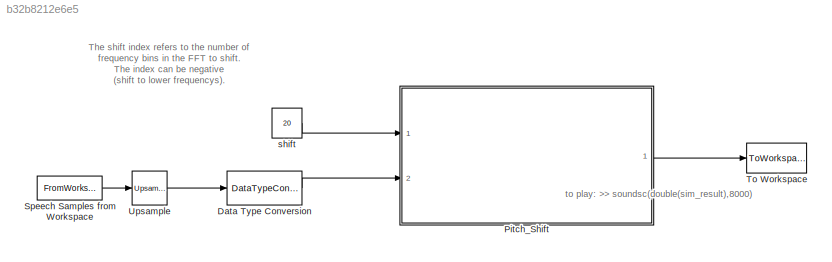
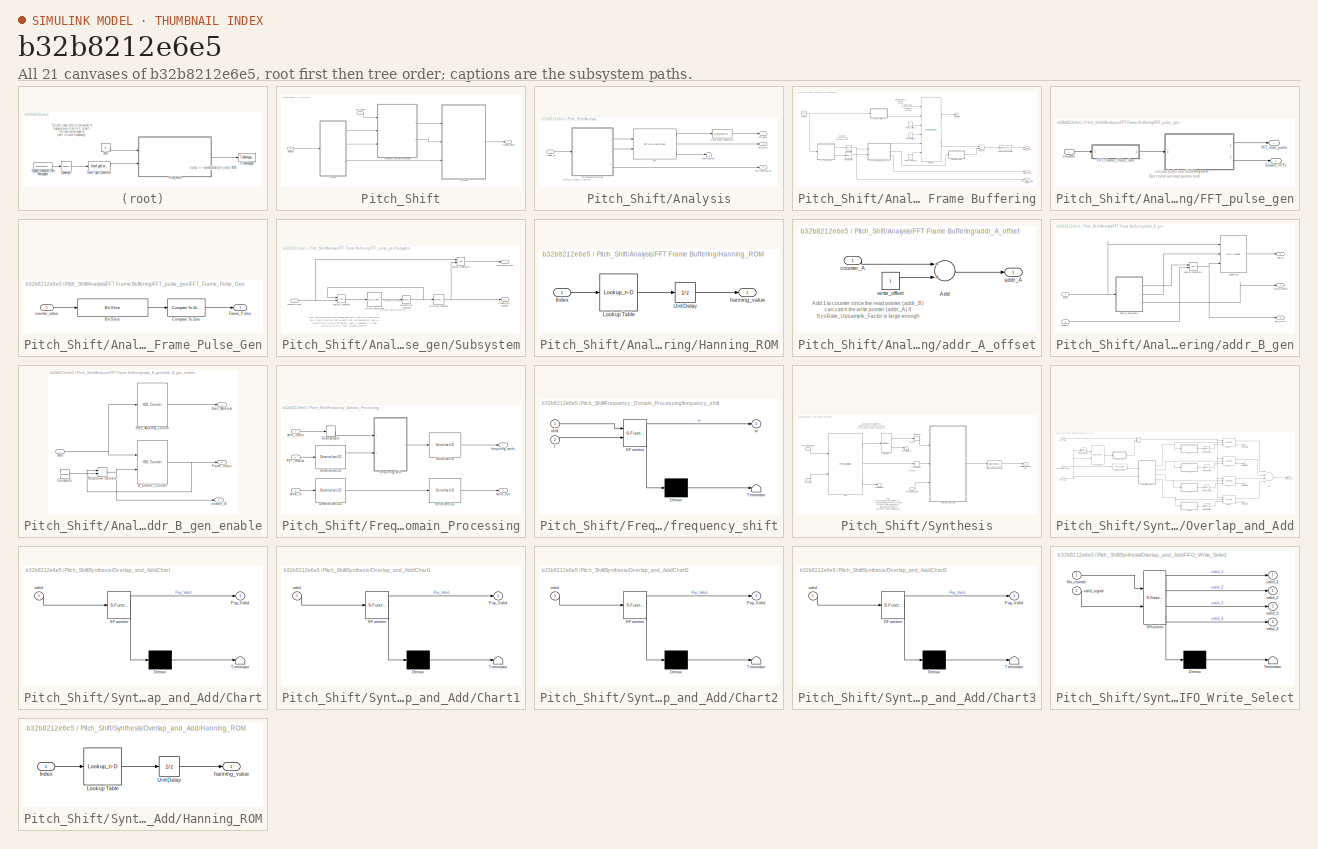
[diagram: thumbnail index - all 21 canvases of the model, root first then tree order]
MODEL slx_b32b8212e6e5
KIND model
CONFIG AbsTol = auto
CONFIG EnableMultiTasking = off
CONFIG FixedStep = auto
CONFIG InitFcn = load speech_signal\nFs = 48000;\nTs = 1/Fs;\n\nFFT_size = 128;\nFFT_size_half = FFT_size/2;\nFFT_frame_shift = FFT_size/4;  % should be a power of two (to easily replace mode operator that is not HDL compatible)\nFFT_frame_shift_Nbits = log2(FFT_frame_shift);\n\nDPRAM1_size = FFT_size*2;  % number of words\nDPRAM1_address_size = log2(DPRAM1_size);\n\n\n\nSysRate_Upsample_Factor = 32;\n\n\nWbits = 32;    %fixdt(1,W...<+26ch>
CONFIG MaxStep = auto
CONFIG MinStep = auto
CONFIG RelTol = 1e-3
CONFIG SampleTimeConstraint = Unconstrained
CONFIG Solver = FixedStepDiscrete
CONFIG SolverName = FixedStepDiscrete
CONFIG StartTime = 0.0
CONFIG StopTime = 5
BLOCK [DataTypeConversion] Data Type Conversion
  OutDataTypeStr = fixdt(1,Wbits,Fbits)
  RndMeth = Floor
  SaturateOnIntegerOverflow = off
BLOCK [SubSystem] Pitch_Shift
  Ports = [2, 1]
  RequestExecContextInheritance = off
  TreatAsAtomicUnit = on
BLOCK [SubSystem] Pitch_Shift/Analysis
  Ports = [1, 3]
  RequestExecContextInheritance = off
BLOCK [DataTypeConversion] Pitch_Shift/Analysis/Data Type Conversion
  OutDataTypeStr = fixdt(1,Wbits,Fbits)
  RndMeth = Floor
  SaturateOnIntegerOverflow = off
BLOCK [Reference] Pitch_Shift/Analysis/FFT  REF=dspxfrm3/FFT
HDL Optimized
  Ports = [2, 3]
  SourceBlock = dspxfrm3/FFT\nHDL Optimized
  SourceProductBaseCode = DS
  SourceProductName = DSP System Toolbox
  SourceType = FFT HDL Optimized
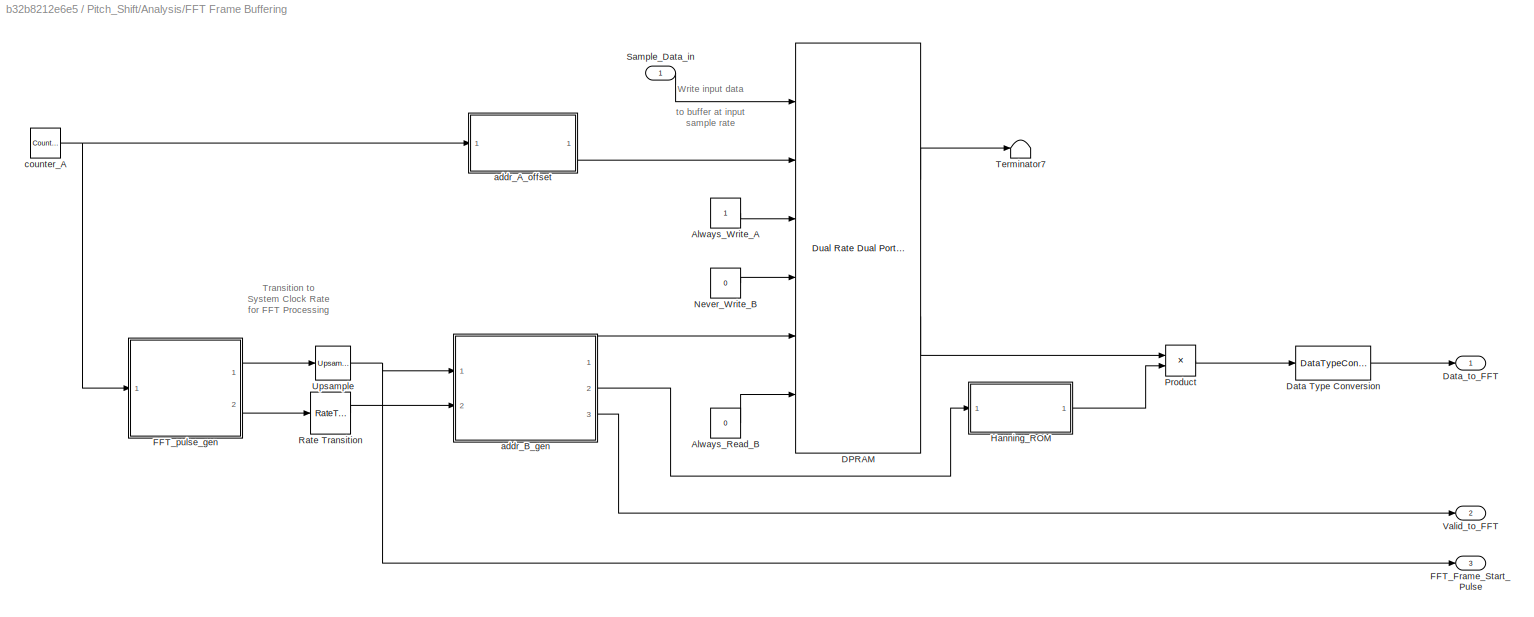
BLOCK [SubSystem] Pitch_Shift/Analysis/FFT Frame Buffering
  Ports = [1, 3]
  RequestExecContextInheritance = off
BLOCK [Constant] Pitch_Shift/Analysis/FFT Frame Buffering/Always_Read_B
  OutDataTypeStr = boolean
  SampleTime = Ts/SysRate_Upsample_Factor
  Value = 0
BLOCK [Constant] Pitch_Shift/Analysis/FFT Frame Buffering/Always_Write_A
  OutDataTypeStr = boolean
  SampleTime = Ts
BLOCK [Reference] Pitch_Shift/Analysis/FFT Frame Buffering/DPRAM  REF=hdlsllib/HDL RAMs/Dual Rate Dual Port RAM
  Ports = [6, 2]
  SourceBlock = hdlsllib/HDL RAMs/Dual Rate Dual Port RAM
  SourceProductBaseCode = HD
  SourceProductName = HDL Coder
  SourceType = Dual-rate dual-port RAM
BLOCK [DataTypeConversion] Pitch_Shift/Analysis/FFT Frame Buffering/Data Type Conversion
  OutDataTypeStr = fixdt(1,Wbits,Fbits)
  RndMeth = Floor
  SaturateOnIntegerOverflow = off
BLOCK [Outport] Pitch_Shift/Analysis/FFT Frame Buffering/Data_to_FFT
  IconDisplay = Port number
BLOCK [Outport] Pitch_Shift/Analysis/FFT Frame Buffering/FFT_Frame_Start_Pulse
  IconDisplay = Port number
  Port = 3
BLOCK [SubSystem] Pitch_Shift/Analysis/FFT Frame Buffering/FFT_pulse_gen
  Ports = [1, 2]
  RequestExecContextInheritance = off
BLOCK [Outport] Pitch_Shift/Analysis/FFT Frame Buffering/FFT_pulse_gen/Enable_FFTs
  IconDisplay = Port number
  Port = 2
BLOCK [SubSystem] Pitch_Shift/Analysis/FFT Frame Buffering/FFT_pulse_gen/FFT_Frame_Pulse_Gen
  Ports = [1, 1]
  RequestExecContextInheritance = off
BLOCK [Reference] Pitch_Shift/Analysis/FFT Frame Buffering/FFT_pulse_gen/FFT_Frame_Pulse_Gen/Bit Slice  REF=hdlsllib/Logic and Bit
Operations/Bit Slice
  Ports = [1, 1]
  SourceBlock = hdlsllib/Logic and Bit\nOperations/Bit Slice
  SourceProductBaseCode = HD
  SourceProductName = HDL Coder
  SourceType = Bit Slice
BLOCK [Reference] Pitch_Shift/Analysis/FFT Frame Buffering/FFT_pulse_gen/FFT_Frame_Pulse_Gen/Compare To Zero  REF=simulink/Logic and Bit
Operations/Compare
To Zero
  Ports = [1, 1]
  SourceBlock = simulink/Logic and Bit\nOperations/Compare\nTo Zero
  SourceProductBaseCode = SL
  SourceProductName = Simulink
  SourceType = Compare To Zero
BLOCK [Outport] Pitch_Shift/Analysis/FFT Frame Buffering/FFT_pulse_gen/FFT_Frame_Pulse_Gen/Frame_Pulse
  IconDisplay = Port number
BLOCK [Inport] Pitch_Shift/Analysis/FFT Frame Buffering/FFT_pulse_gen/FFT_Frame_Pulse_Gen/counter_value 
  IconDisplay = Port number
BLOCK [Outport] Pitch_Shift/Analysis/FFT Frame Buffering/FFT_pulse_gen/FFT_start_pulse
  IconDisplay = Port number
BLOCK [SubSystem] Pitch_Shift/Analysis/FFT Frame Buffering/FFT_pulse_gen/Subsystem
  Ports = [1, 2]
  RequestExecContextInheritance = off
BLOCK [Reference] Pitch_Shift/Analysis/FFT Frame Buffering/FFT_pulse_gen/Subsystem/Bitwise Operator  REF=simulink/Logic and Bit
Operations/Bitwise
Operator
  Ports = [1, 1]
  SourceBlock = simulink/Logic and Bit\nOperations/Bitwise\nOperator
  SourceProductBaseCode = SL
  SourceProductName = Simulink
  SourceType = Bitwise Operator
BLOCK [Reference] Pitch_Shift/Analysis/FFT Frame Buffering/FFT_pulse_gen/Subsystem/Compare To Constant  REF=simulink/Logic and Bit
Operations/Compare
To Constant
  Ports = [1, 1]
  SourceBlock = simulink/Logic and Bit\nOperations/Compare\nTo Constant
  SourceProductBaseCode = SL
  SourceProductName = Simulink
  SourceType = Compare To Constant
BLOCK [Outport] Pitch_Shift/Analysis/FFT Frame Buffering/FFT_pulse_gen/Subsystem/Enable_FFT_Frames
  IconDisplay = Port number
  Port = 2
BLOCK [Outport] Pitch_Shift/Analysis/FFT Frame Buffering/FFT_pulse_gen/Subsystem/FFT_Frame_Start
  IconDisplay = Port number
BLOCK [Inport] Pitch_Shift/Analysis/FFT Frame Buffering/FFT_pulse_gen/Subsystem/Frame_Pulse
  IconDisplay = Port number
BLOCK [Reference] Pitch_Shift/Analysis/FFT Frame Buffering/FFT_pulse_gen/Subsystem/Initial_frame_count  REF=hdlsllib/Sources/HDL Counter
  Ports = [1, 1]
  SourceBlock = hdlsllib/Sources/HDL Counter
  SourceProductBaseCode = HD
  SourceProductName = HDL Coder
  SourceType = HDL Counter
BLOCK [Logic] Pitch_Shift/Analysis/FFT Frame Buffering/FFT_pulse_gen/Subsystem/Logical Operator
  AllPortsSameDT = off
  OutDataTypeStr = boolean
  Ports = [2, 1]
BLOCK [Logic] Pitch_Shift/Analysis/FFT Frame Buffering/FFT_pulse_gen/Subsystem/Logical Operator1
  AllPortsSameDT = off
  OutDataTypeStr = boolean
  Ports = [2, 1]
BLOCK [Inport] Pitch_Shift/Analysis/FFT Frame Buffering/FFT_pulse_gen/counter
  IconDisplay = Port number
BLOCK [SubSystem] Pitch_Shift/Analysis/FFT Frame Buffering/Hanning_ROM
  Ports = [1, 1]
  RequestExecContextInheritance = off
BLOCK [Inport] Pitch_Shift/Analysis/FFT Frame Buffering/Hanning_ROM/Index
  IconDisplay = Port number
BLOCK [Lookup_n-D] Pitch_Shift/Analysis/FFT Frame Buffering/Hanning_ROM/Lookup Table
  BreakpointsForDimension1 = [0:FFT_size]
  DiagnosticForOutOfRangeInput = Error
  ExtrapMethod = Clip
  IndexSearchMethod = Evenly spaced points
  InterpMethod = Flat
  NumberOfTableDimensions = 1
  OutDataTypeStr = fixdt(1,24,22)
  Ports = [1, 1]
  RndMeth = Simplest
  Table = hanning(FFT_size+1)
  UseLastTableValue = on
BLOCK [UnitDelay] Pitch_Shift/Analysis/FFT Frame Buffering/Hanning_ROM/Unit Delay
  SampleTime = -1
BLOCK [Outport] Pitch_Shift/Analysis/FFT Frame Buffering/Hanning_ROM/hanning_value
  IconDisplay = Port number
BLOCK [Constant] Pitch_Shift/Analysis/FFT Frame Buffering/Never_Write_B
  OutDataTypeStr = fixdt(1,Wbits,Fbits)
  SampleTime = Ts/SysRate_Upsample_Factor
  Value = 0
BLOCK [Product] Pitch_Shift/Analysis/FFT Frame Buffering/Product
  InputSameDT = off
  OutDataTypeStr = Inherit: Inherit via internal rule
  Ports = [2, 1]
  RndMeth = Floor
  SaturateOnIntegerOverflow = off
BLOCK [RateTransition] Pitch_Shift/Analysis/FFT Frame Buffering/Rate Transition
  OutPortSampleTimeMultiple = 1/SysRate_Upsample_Factor
  OutPortSampleTimeOpt = Multiple of input port sample time
BLOCK [Inport] Pitch_Shift/Analysis/FFT Frame Buffering/Sample_Data_in
  IconDisplay = Port number
BLOCK [Terminator] Pitch_Shift/Analysis/FFT Frame Buffering/Terminator7
BLOCK [Reference] Pitch_Shift/Analysis/FFT Frame Buffering/Upsample  REF=dspsigops/Upsample
  Ports = [1, 1]
  SourceBlock = dspsigops/Upsample
  SourceProductBaseCode = DS
  SourceProductName = DSP System Toolbox
  SourceType = Upsample
  UserDataPersistent = on
BLOCK [Outport] Pitch_Shift/Analysis/FFT Frame Buffering/Valid_to_FFT
  IconDisplay = Port number
  Port = 2
BLOCK [SubSystem] Pitch_Shift/Analysis/FFT Frame Buffering/addr_A_offset
  Ports = [1, 1]
  RequestExecContextInheritance = off
BLOCK [Sum] Pitch_Shift/Analysis/FFT Frame Buffering/addr_A_offset/Add
  InputSameDT = off
  OutDataTypeStr = fixdt(0,DPRAM1_address_size,0)
  Ports = [2, 1]
  SaturateOnIntegerOverflow = off
BLOCK [Outport] Pitch_Shift/Analysis/FFT Frame Buffering/addr_A_offset/addr_A
  IconDisplay = Port number
BLOCK [Inport] Pitch_Shift/Analysis/FFT Frame Buffering/addr_A_offset/counter_A
  IconDisplay = Port number
BLOCK [Constant] Pitch_Shift/Analysis/FFT Frame Buffering/addr_A_offset/write_offset
  OutDataTypeStr = fixdt(0,DPRAM1_address_size,0)
  SampleTime = Ts
BLOCK [SubSystem] Pitch_Shift/Analysis/FFT Frame Buffering/addr_B_gen
  Ports = [2, 3]
  RequestExecContextInheritance = off
BLOCK [Outport] Pitch_Shift/Analysis/FFT Frame Buffering/addr_B_gen/FFT_Valid
  IconDisplay = Port number
  Port = 3
BLOCK [Outport] Pitch_Shift/Analysis/FFT Frame Buffering/addr_B_gen/Frame_counter
  IconDisplay = Port number
  Port = 2
BLOCK [Logic] Pitch_Shift/Analysis/FFT Frame Buffering/addr_B_gen/Logical Operator1
  AllPortsSameDT = off
  OutDataTypeStr = boolean
  Ports = [2, 1]
BLOCK [Outport] Pitch_Shift/Analysis/FFT Frame Buffering/addr_B_gen/addr_B
  IconDisplay = Port number
BLOCK [SubSystem] Pitch_Shift/Analysis/FFT Frame Buffering/addr_B_gen/addr_B_gen_enable
  Ports = [1, 3]
  RequestExecContextInheritance = off
BLOCK [Reference] Pitch_Shift/Analysis/FFT Frame Buffering/addr_B_gen/addr_B_gen_enable/B_Enable_Counter  REF=hdlsllib/Sources/HDL Counter
  Ports = [2, 1]
  SourceBlock = hdlsllib/Sources/HDL Counter
  SourceProductBaseCode = HD
  SourceProductName = HDL Coder
  SourceType = HDL Counter
BLOCK [Constant] Pitch_Shift/Analysis/FFT Frame Buffering/addr_B_gen/addr_B_gen_enable/Constant5
  OutDataTypeStr = fixdt(0,11,0)
  SampleTime = Ts/SysRate_Upsample_Factor
  Value = FFT_size
BLOCK [Outport] Pitch_Shift/Analysis/FFT Frame Buffering/addr_B_gen/addr_B_gen_enable/Frame_Index
  IconDisplay = Port number
  Port = 3
BLOCK [RelationalOperator] Pitch_Shift/Analysis/FFT Frame Buffering/addr_B_gen/addr_B_gen_enable/Relational Operator
  InputSameDT = off
  Operator = <
  OutDataTypeStr = boolean
  Ports = [2, 1]
  ZeroCross = off
BLOCK [Outport] Pitch_Shift/Analysis/FFT Frame Buffering/addr_B_gen/addr_B_gen_enable/Start_Address
  IconDisplay = Port number
  Port = 2
BLOCK [Reference] Pitch_Shift/Analysis/FFT Frame Buffering/addr_B_gen/addr_B_gen_enable/Start_Address_Counter  REF=hdlsllib/Sources/HDL Counter
  Ports = [1, 1]
  SourceBlock = hdlsllib/Sources/HDL Counter
  SourceProductBaseCode = HD
  SourceProductName = HDL Coder
  SourceType = HDL Counter
BLOCK [Outport] Pitch_Shift/Analysis/FFT Frame Buffering/addr_B_gen/addr_B_gen_enable/enable_B
  IconDisplay = Port number
BLOCK [Inport] Pitch_Shift/Analysis/FFT Frame Buffering/addr_B_gen/addr_B_gen_enable/start
  IconDisplay = Port number
BLOCK [Reference] Pitch_Shift/Analysis/FFT Frame Buffering/addr_B_gen/counter_B  REF=hdlsllib/Sources/HDL Counter
  Ports = [3, 1]
  SourceBlock = hdlsllib/Sources/HDL Counter
  SourceProductBaseCode = HD
  SourceProductName = HDL Coder
  SourceType = HDL Counter
BLOCK [Inport] Pitch_Shift/Analysis/FFT Frame Buffering/addr_B_gen/enable
  IconDisplay = Port number
  Port = 2
BLOCK [Inport] Pitch_Shift/Analysis/FFT Frame Buffering/addr_B_gen/start
  IconDisplay = Port number
BLOCK [Reference] Pitch_Shift/Analysis/FFT Frame Buffering/counter_A  REF=simulink/Sources/Counter
Free-Running
  Ports = [0, 1]
  SourceBlock = simulink/Sources/Counter\nFree-Running
  SourceProductBaseCode = SL
  SourceProductName = Simulink
  SourceType = Counter Free-Running
BLOCK [Outport] Pitch_Shift/Analysis/FFT_data
  IconDisplay = Port number
BLOCK [Outport] Pitch_Shift/Analysis/FFT_frame_pulse
  IconDisplay = Port number
  Port = 3
BLOCK [Outport] Pitch_Shift/Analysis/FFT_valid
  IconDisplay = Port number
  Port = 2
BLOCK [Inport] Pitch_Shift/Analysis/Signal_in
  IconDisplay = Port number
BLOCK [Terminator] Pitch_Shift/Analysis/Terminator6
BLOCK [SubSystem] Pitch_Shift/Frequency_Domain_Processing
  Ports = [3, 2]
  RequestExecContextInheritance = off
BLOCK [Reference] Pitch_Shift/Frequency_Domain_Processing/Deserializer1D  REF=hdlsllib/HDL Operations/Deserializer1D
  Ports = [1, 1]
  SourceBlock = hdlsllib/HDL Operations/Deserializer1D
  SourceProductBaseCode = HD
  SourceProductName = HDL Coder
  SourceType = Deserializer1D
BLOCK [Reference] Pitch_Shift/Frequency_Domain_Processing/Deserializer1D1  REF=hdlsllib/HDL Operations/Deserializer1D
  Ports = [1, 1]
  SourceBlock = hdlsllib/HDL Operations/Deserializer1D
  SourceProductBaseCode = HD
  SourceProductName = HDL Coder
  SourceType = Deserializer1D
BLOCK [DownSample] Pitch_Shift/Frequency_Domain_Processing/Downsample
  InputProcessing = Elements as channels (sample based)
  N = FFT_size/SysRate_Upsample_Factor
  RateOptions = Allow multirate processing
BLOCK [Inport] Pitch_Shift/Frequency_Domain_Processing/FFT_results
  IconDisplay = Port number
  Port = 2
BLOCK [Reference] Pitch_Shift/Frequency_Domain_Processing/Serializer1D  REF=hdlsllib/HDL Operations/Serializer1D
  Ports = [1, 1]
  SourceBlock = hdlsllib/HDL Operations/Serializer1D
  SourceProductBaseCode = HD
  SourceProductName = HDL Coder
  SourceType = Serializer1D
BLOCK [Reference] Pitch_Shift/Frequency_Domain_Processing/Serializer1D1  REF=hdlsllib/HDL Operations/Serializer1D
  Ports = [1, 1]
  SourceBlock = hdlsllib/HDL Operations/Serializer1D
  SourceProductBaseCode = HD
  SourceProductName = HDL Coder
  SourceType = Serializer1D
BLOCK [Outport] Pitch_Shift/Frequency_Domain_Processing/frequency_mods
  IconDisplay = Port number
BLOCK [SubSystem] Pitch_Shift/Frequency_Domain_Processing/frequency_shift
  ErrorFcn = Stateflow.Translate.translate
  PermitHierarchicalResolution = ExplicitOnly
  Ports = [2, 1]
  RequestExecContextInheritance = off
  SFBlockType = MATLAB Function
  TreatAsAtomicUnit = on
BLOCK [Demux] Pitch_Shift/Frequency_Domain_Processing/frequency_shift/ Demux 
  Outputs = 1
  Ports = [1, 1]
BLOCK [S-Function] Pitch_Shift/Frequency_Domain_Processing/frequency_shift/ SFunction 
  EnableBusSupport = on
  FunctionName = sf_sfun
  PortCounts = [2 2]
  Ports = [2, 2]
  SFcnIsStateOwnerBlock = off
  SFunctionDeploymentMode = off
  Tag = Stateflow S-Function sp12 6
BLOCK [Terminator] Pitch_Shift/Frequency_Domain_Processing/frequency_shift/ Terminator 
BLOCK [Inport] Pitch_Shift/Frequency_Domain_Processing/frequency_shift/f
  IconDisplay = Port number
  Port = 2
BLOCK [Inport] Pitch_Shift/Frequency_Domain_Processing/frequency_shift/shift
  IconDisplay = Port number
BLOCK [Outport] Pitch_Shift/Frequency_Domain_Processing/frequency_shift/w
  IconDisplay = Port number
BLOCK [Inport] Pitch_Shift/Frequency_Domain_Processing/shift_index
  IconDisplay = Port number
BLOCK [Inport] Pitch_Shift/Frequency_Domain_Processing/valid_in
  IconDisplay = Port number
  Port = 3
BLOCK [Outport] Pitch_Shift/Frequency_Domain_Processing/valid_out
  IconDisplay = Port number
  Port = 2
BLOCK [SubSystem] Pitch_Shift/Synthesis
  Ports = [3, 1]
  RequestExecContextInheritance = off
BLOCK [DataTypeConversion] Pitch_Shift/Synthesis/Data Type Conversion1
  OutDataTypeStr = fixdt(1,Wbits,Fbits)
  RndMeth = Floor
  SaturateOnIntegerOverflow = off
BLOCK [Inport] Pitch_Shift/Synthesis/FFT_data_mods
  IconDisplay = Port number
BLOCK [Inport] Pitch_Shift/Synthesis/FFT_frame_pulse
  IconDisplay = Port number
  Port = 3
BLOCK [Inport] Pitch_Shift/Synthesis/FFT_valid
  IconDisplay = Port number
  Port = 2
BLOCK [ComplexToRealImag] Pitch_Shift/Synthesis/Get_Real
  Ports = [1, 2]
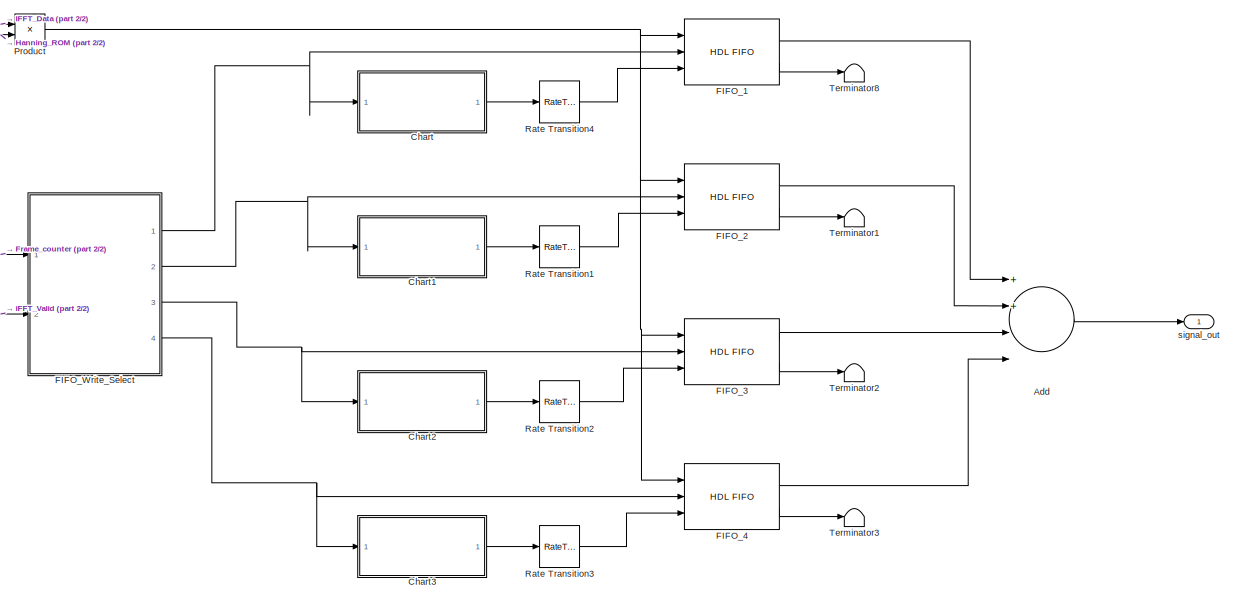
[diagram: Pitch_Shift/Synthesis/Overlap_and_Add - part 1/2, center side, full height]
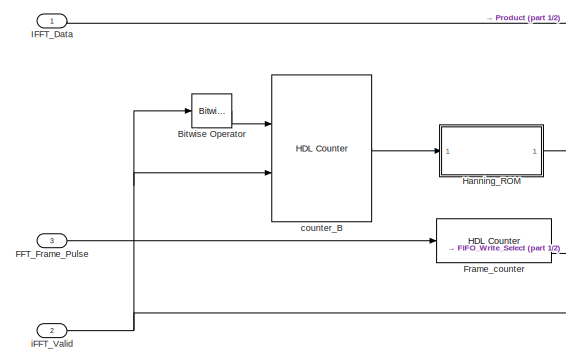
[diagram: Pitch_Shift/Synthesis/Overlap_and_Add - part 2/2, top left region]
BLOCK [SubSystem] Pitch_Shift/Synthesis/Overlap_and_Add
  Ports = [3, 1]
  RequestExecContextInheritance = off
BLOCK [Sum] Pitch_Shift/Synthesis/Overlap_and_Add/Add
  InputSameDT = off
  Inputs = 4
  OutDataTypeStr = Inherit: Inherit via internal rule
  Ports = [4, 1]
  SaturateOnIntegerOverflow = off
BLOCK [Reference] Pitch_Shift/Synthesis/Overlap_and_Add/Bitwise Operator  REF=simulink/Logic and Bit
Operations/Bitwise
Operator
  Ports = [1, 1]
  SourceBlock = simulink/Logic and Bit\nOperations/Bitwise\nOperator
  SourceProductBaseCode = SL
  SourceProductName = Simulink
  SourceType = Bitwise Operator
BLOCK [SubSystem] Pitch_Shift/Synthesis/Overlap_and_Add/Chart
  ErrorFcn = Stateflow.Translate.translate
  PermitHierarchicalResolution = ExplicitOnly
  Ports = [1, 1]
  RequestExecContextInheritance = off
  SFBlockType = Chart
  TreatAsAtomicUnit = on
BLOCK [Demux] Pitch_Shift/Synthesis/Overlap_and_Add/Chart/ Demux 
  Outputs = 1
  Ports = [1, 1]
BLOCK [S-Function] Pitch_Shift/Synthesis/Overlap_and_Add/Chart/ SFunction 
  EnableBusSupport = on
  FunctionName = sf_sfun
  PortCounts = [1 2]
  Ports = [1, 2]
  SFcnIsStateOwnerBlock = off
  SFunctionDeploymentMode = off
  Tag = Stateflow S-Function sp12 8
BLOCK [Terminator] Pitch_Shift/Synthesis/Overlap_and_Add/Chart/ Terminator 
BLOCK [Outport] Pitch_Shift/Synthesis/Overlap_and_Add/Chart/Pop_Valid
  IconDisplay = Port number
BLOCK [Inport] Pitch_Shift/Synthesis/Overlap_and_Add/Chart/valid
  IconDisplay = Port number
BLOCK [SubSystem] Pitch_Shift/Synthesis/Overlap_and_Add/Chart1
  ErrorFcn = Stateflow.Translate.translate
  PermitHierarchicalResolution = ExplicitOnly
  Ports = [1, 1]
  RequestExecContextInheritance = off
  SFBlockType = Chart
  TreatAsAtomicUnit = on
BLOCK [Demux] Pitch_Shift/Synthesis/Overlap_and_Add/Chart1/ Demux 
  Outputs = 1
  Ports = [1, 1]
BLOCK [S-Function] Pitch_Shift/Synthesis/Overlap_and_Add/Chart1/ SFunction 
  EnableBusSupport = on
  FunctionName = sf_sfun
  PortCounts = [1 2]
  Ports = [1, 2]
  SFcnIsStateOwnerBlock = off
  SFunctionDeploymentMode = off
  Tag = Stateflow S-Function sp12 1
BLOCK [Terminator] Pitch_Shift/Synthesis/Overlap_and_Add/Chart1/ Terminator 
BLOCK [Outport] Pitch_Shift/Synthesis/Overlap_and_Add/Chart1/Pop_Valid
  IconDisplay = Port number
BLOCK [Inport] Pitch_Shift/Synthesis/Overlap_and_Add/Chart1/valid
  IconDisplay = Port number
BLOCK [SubSystem] Pitch_Shift/Synthesis/Overlap_and_Add/Chart2
  ErrorFcn = Stateflow.Translate.translate
  PermitHierarchicalResolution = ExplicitOnly
  Ports = [1, 1]
  RequestExecContextInheritance = off
  SFBlockType = Chart
  TreatAsAtomicUnit = on
BLOCK [Demux] Pitch_Shift/Synthesis/Overlap_and_Add/Chart2/ Demux 
  Outputs = 1
  Ports = [1, 1]
BLOCK [S-Function] Pitch_Shift/Synthesis/Overlap_and_Add/Chart2/ SFunction 
  EnableBusSupport = on
  FunctionName = sf_sfun
  PortCounts = [1 2]
  Ports = [1, 2]
  SFcnIsStateOwnerBlock = off
  SFunctionDeploymentMode = off
  Tag = Stateflow S-Function sp12 3
BLOCK [Terminator] Pitch_Shift/Synthesis/Overlap_and_Add/Chart2/ Terminator 
BLOCK [Outport] Pitch_Shift/Synthesis/Overlap_and_Add/Chart2/Pop_Valid
  IconDisplay = Port number
BLOCK [Inport] Pitch_Shift/Synthesis/Overlap_and_Add/Chart2/valid
  IconDisplay = Port number
BLOCK [SubSystem] Pitch_Shift/Synthesis/Overlap_and_Add/Chart3
  ErrorFcn = Stateflow.Translate.translate
  PermitHierarchicalResolution = ExplicitOnly
  Ports = [1, 1]
  RequestExecContextInheritance = off
  SFBlockType = Chart
  TreatAsAtomicUnit = on
BLOCK [Demux] Pitch_Shift/Synthesis/Overlap_and_Add/Chart3/ Demux 
  Outputs = 1
  Ports = [1, 1]
BLOCK [S-Function] Pitch_Shift/Synthesis/Overlap_and_Add/Chart3/ SFunction 
  EnableBusSupport = on
  FunctionName = sf_sfun
  PortCounts = [1 2]
  Ports = [1, 2]
  SFcnIsStateOwnerBlock = off
  SFunctionDeploymentMode = off
  Tag = Stateflow S-Function sp12 4
BLOCK [Terminator] Pitch_Shift/Synthesis/Overlap_and_Add/Chart3/ Terminator 
BLOCK [Outport] Pitch_Shift/Synthesis/Overlap_and_Add/Chart3/Pop_Valid
  IconDisplay = Port number
BLOCK [Inport] Pitch_Shift/Synthesis/Overlap_and_Add/Chart3/valid
  IconDisplay = Port number
BLOCK [Inport] Pitch_Shift/Synthesis/Overlap_and_Add/FFT_Frame_Pulse
  IconDisplay = Port number
  Port = 3
BLOCK [Reference] Pitch_Shift/Synthesis/Overlap_and_Add/FIFO_1  REF=hdlsllib/HDL RAMs/HDL FIFO
  Ports = [3, 2]
  SourceBlock = hdlsllib/HDL RAMs/HDL FIFO
  SourceProductBaseCode = HD
  SourceProductName = HDL Coder
  SourceType = HDL_FIFO
BLOCK [Reference] Pitch_Shift/Synthesis/Overlap_and_Add/FIFO_2  REF=hdlsllib/HDL RAMs/HDL FIFO
  Ports = [3, 2]
  SourceBlock = hdlsllib/HDL RAMs/HDL FIFO
  SourceProductBaseCode = HD
  SourceProductName = HDL Coder
  SourceType = HDL_FIFO
BLOCK [Reference] Pitch_Shift/Synthesis/Overlap_and_Add/FIFO_3  REF=hdlsllib/HDL RAMs/HDL FIFO
  Ports = [3, 2]
  SourceBlock = hdlsllib/HDL RAMs/HDL FIFO
  SourceProductBaseCode = HD
  SourceProductName = HDL Coder
  SourceType = HDL_FIFO
BLOCK [Reference] Pitch_Shift/Synthesis/Overlap_and_Add/FIFO_4  REF=hdlsllib/HDL RAMs/HDL FIFO
  Ports = [3, 2]
  SourceBlock = hdlsllib/HDL RAMs/HDL FIFO
  SourceProductBaseCode = HD
  SourceProductName = HDL Coder
  SourceType = HDL_FIFO
BLOCK [SubSystem] Pitch_Shift/Synthesis/Overlap_and_Add/FIFO_Write_Select
  ErrorFcn = Stateflow.Translate.translate
  PermitHierarchicalResolution = ExplicitOnly
  Ports = [2, 4]
  RequestExecContextInheritance = off
  SFBlockType = MATLAB Function
  TreatAsAtomicUnit = on
BLOCK [Demux] Pitch_Shift/Synthesis/Overlap_and_Add/FIFO_Write_Select/ Demux 
  Outputs = 1
  Ports = [1, 1]
BLOCK [S-Function] Pitch_Shift/Synthesis/Overlap_and_Add/FIFO_Write_Select/ SFunction 
  EnableBusSupport = on
  FunctionName = sf_sfun
  PortCounts = [2 5]
  Ports = [2, 5]
  SFcnIsStateOwnerBlock = off
  SFunctionDeploymentMode = off
  Tag = Stateflow S-Function sp12 2
BLOCK [Terminator] Pitch_Shift/Synthesis/Overlap_and_Add/FIFO_Write_Select/ Terminator 
BLOCK [Inport] Pitch_Shift/Synthesis/Overlap_and_Add/FIFO_Write_Select/fifo_counter
  IconDisplay = Port number
BLOCK [Outport] Pitch_Shift/Synthesis/Overlap_and_Add/FIFO_Write_Select/valid_1
  IconDisplay = Port number
BLOCK [Outport] Pitch_Shift/Synthesis/Overlap_and_Add/FIFO_Write_Select/valid_2
  IconDisplay = Port number
  Port = 2
BLOCK [Outport] Pitch_Shift/Synthesis/Overlap_and_Add/FIFO_Write_Select/valid_3
  IconDisplay = Port number
  Port = 3
BLOCK [Outport] Pitch_Shift/Synthesis/Overlap_and_Add/FIFO_Write_Select/valid_4
  IconDisplay = Port number
  Port = 4
BLOCK [Inport] Pitch_Shift/Synthesis/Overlap_and_Add/FIFO_Write_Select/valid_signal
  IconDisplay = Port number
  Port = 2
BLOCK [Reference] Pitch_Shift/Synthesis/Overlap_and_Add/Frame_counter  REF=hdlsllib/Sources/HDL Counter
  Ports = [1, 1]
  SourceBlock = hdlsllib/Sources/HDL Counter
  SourceProductBaseCode = HD
  SourceProductName = HDL Coder
  SourceType = HDL Counter
BLOCK [SubSystem] Pitch_Shift/Synthesis/Overlap_and_Add/Hanning_ROM
  Ports = [1, 1]
  RequestExecContextInheritance = off
BLOCK [Inport] Pitch_Shift/Synthesis/Overlap_and_Add/Hanning_ROM/Index
  IconDisplay = Port number
BLOCK [Lookup_n-D] Pitch_Shift/Synthesis/Overlap_and_Add/Hanning_ROM/Lookup Table
  BreakpointsForDimension1 = [0:FFT_size]
  DiagnosticForOutOfRangeInput = Error
  ExtrapMethod = Clip
  IndexSearchMethod = Evenly spaced points
  InterpMethod = Flat
  NumberOfTableDimensions = 1
  OutDataTypeStr = fixdt(1,24,22)
  Ports = [1, 1]
  RndMeth = Simplest
  Table = hanning(FFT_size+1)
  UseLastTableValue = on
BLOCK [UnitDelay] Pitch_Shift/Synthesis/Overlap_and_Add/Hanning_ROM/Unit Delay
  SampleTime = -1
BLOCK [Outport] Pitch_Shift/Synthesis/Overlap_and_Add/Hanning_ROM/hanning_value
  IconDisplay = Port number
BLOCK [Inport] Pitch_Shift/Synthesis/Overlap_and_Add/IFFT_Data
  IconDisplay = Port number
BLOCK [Product] Pitch_Shift/Synthesis/Overlap_and_Add/Product
  InputSameDT = off
  OutDataTypeStr = Inherit: Inherit via internal rule
  Ports = [2, 1]
  RndMeth = Floor
  SaturateOnIntegerOverflow = off
BLOCK [RateTransition] Pitch_Shift/Synthesis/Overlap_and_Add/Rate Transition1
  OutPortSampleTimeMultiple = SysRate_Upsample_Factor
  OutPortSampleTimeOpt = Multiple of input port sample time
BLOCK [RateTransition] Pitch_Shift/Synthesis/Overlap_and_Add/Rate Transition2
  OutPortSampleTimeMultiple = SysRate_Upsample_Factor
  OutPortSampleTimeOpt = Multiple of input port sample time
BLOCK [RateTransition] Pitch_Shift/Synthesis/Overlap_and_Add/Rate Transition3
  OutPortSampleTimeMultiple = SysRate_Upsample_Factor
  OutPortSampleTimeOpt = Multiple of input port sample time
BLOCK [RateTransition] Pitch_Shift/Synthesis/Overlap_and_Add/Rate Transition4
  OutPortSampleTimeMultiple = SysRate_Upsample_Factor
  OutPortSampleTimeOpt = Multiple of input port sample time
BLOCK [Terminator] Pitch_Shift/Synthesis/Overlap_and_Add/Terminator1
BLOCK [Terminator] Pitch_Shift/Synthesis/Overlap_and_Add/Terminator2
BLOCK [Terminator] Pitch_Shift/Synthesis/Overlap_and_Add/Terminator3
BLOCK [Terminator] Pitch_Shift/Synthesis/Overlap_and_Add/Terminator8
BLOCK [Reference] Pitch_Shift/Synthesis/Overlap_and_Add/counter_B  REF=hdlsllib/Sources/HDL Counter
  Ports = [2, 1]
  SourceBlock = hdlsllib/Sources/HDL Counter
  SourceProductBaseCode = HD
  SourceProductName = HDL Coder
  SourceType = HDL Counter
BLOCK [Inport] Pitch_Shift/Synthesis/Overlap_and_Add/iFFT_Valid
  IconDisplay = Port number
  Port = 2
BLOCK [Outport] Pitch_Shift/Synthesis/Overlap_and_Add/signal_out
  IconDisplay = Port number
BLOCK [Reshape] Pitch_Shift/Synthesis/Reshape
  Ports = [1, 1]
BLOCK [Reshape] Pitch_Shift/Synthesis/Reshape1
  Ports = [1, 1]
BLOCK [Terminator] Pitch_Shift/Synthesis/Terminator8
BLOCK [Terminator] Pitch_Shift/Synthesis/Terminator9
BLOCK [Reference] Pitch_Shift/Synthesis/iFFT  REF=dspxfrm3/IFFT
HDL Optimized
  Ports = [2, 3]
  SourceBlock = dspxfrm3/IFFT\nHDL Optimized
  SourceProductBaseCode = DS
  SourceProductName = DSP System Toolbox
  SourceType = IFFT HDL Optimized
BLOCK [Outport] Pitch_Shift/Synthesis/modified_signal_out
  IconDisplay = Port number
BLOCK [Outport] Pitch_Shift/modified_signal
  IconDisplay = Port number
BLOCK [Inport] Pitch_Shift/shift_index
  IconDisplay = Port number
BLOCK [Inport] Pitch_Shift/signal_in
  IconDisplay = Port number
  Port = 2
BLOCK [FromWorkspace] Speech Samples from Workspace
  SampleTime = Ts*6
  VariableName = sp
  ZeroCross = on
BLOCK [ToWorkspace] To Workspace
  FixptAsFi = on
  MaxDataPoints = inf
  Ports = [1]
  SampleTime = -1
  Save2DSignal = 3-D array (concatenate along third dimension)
  VariableName = sim_result
BLOCK [Reference] Upsample  REF=dspsigops/Upsample
  Ports = [1, 1]
  SourceBlock = dspsigops/Upsample
  SourceProductBaseCode = DS
  SourceProductName = DSP System Toolbox
  SourceType = Upsample
  UserDataPersistent = on
BLOCK [Constant] shift
  OutDataTypeStr = fixdt(1,16,0)
  SampleTime = Ts
  Value = 20
ANNOTATION (root): The shift index refers to the number of frequency bins in the FFT to shift. The index can be negative (shift to lower frequencys).
ANNOTATION (root): to play: >> soundsc(double(sim_result),8000)
ANNOTATION Pitch_Shift/Analysis: Hanning window is applied
ANNOTATION Pitch_Shift/Analysis/FFT Frame Buffering: Transition to System Clock Rate for FFT Processing
ANNOTATION Pitch_Shift/Analysis/FFT Frame Buffering: Write input data to buffer at input sample rate
ANNOTATION Pitch_Shift/Analysis/FFT Frame Buffering/FFT_pulse_gen: Don't send out start pulses until circular buffer has filled.
ANNOTATION Pitch_Shift/Analysis/FFT Frame Buffering/FFT_pulse_gen/Subsystem: Number of Frames to wait before starting
ANNOTATION Pitch_Shift/Analysis/FFT Frame Buffering/FFT_pulse_gen/Subsystem: Start performing FFTs after enough data has filled the circular buffer. This is due to the fact that we don't want the read pointer (addr_B) to catch up with the write pointer (addr_A) because if it does, the DPRAM will throw an assertion error.
ANNOTATION Pitch_Shift/Analysis/FFT Frame Buffering/addr_A_offset: Add 1 to counter since the read pointer (addr_B) can catch the write pointer (addr_A) if SysRate_Upsample_Factor is large enough
ANNOTATION Pitch_Shift/Synthesis: Note 1: Reshape is to avoid a simulink error. Adding a FIFO to the iFFT block causes the iFFT to change its output datatypes, i.e. the data and valid signals become a [1x1] matrix (Simulink Bug). This work around was given by Mathworks tech support (March 16, 2018). Matlab 2017b
ANNOTATION Pitch_Shift/Synthesis: Making the assumption here that the frequency domain processing preserved the complex conjugate pairs.
ANNOTATION Pitch_Shift/Synthesis: See Note 1
LINE Data Type Conversion:1 -> Pitch_Shift:2
LINE Pitch_Shift/Analysis/Data Type Conversion:1 -> Pitch_Shift/Analysis/FFT_data:1
LINE Pitch_Shift/Analysis/FFT Frame Buffering/Always_Read_B:1 -> Pitch_Shift/Analysis/FFT Frame Buffering/DPRAM:6
LINE Pitch_Shift/Analysis/FFT Frame Buffering/Always_Write_A:1 -> Pitch_Shift/Analysis/FFT Frame Buffering/DPRAM:3
LINE Pitch_Shift/Analysis/FFT Frame Buffering/DPRAM:1 -> Pitch_Shift/Analysis/FFT Frame Buffering/Terminator7:1
LINE Pitch_Shift/Analysis/FFT Frame Buffering/DPRAM:2 -> Pitch_Shift/Analysis/FFT Frame Buffering/Product:1
LINE Pitch_Shift/Analysis/FFT Frame Buffering/Data Type Conversion:1 -> Pitch_Shift/Analysis/FFT Frame Buffering/Data_to_FFT:1
LINE Pitch_Shift/Analysis/FFT Frame Buffering/FFT_pulse_gen/FFT_Frame_Pulse_Gen/Bit Slice:1 -> Pitch_Shift/Analysis/FFT Frame Buffering/FFT_pulse_gen/FFT_Frame_Pulse_Gen/Compare To Zero:1
LINE Pitch_Shift/Analysis/FFT Frame Buffering/FFT_pulse_gen/FFT_Frame_Pulse_Gen/Compare To Zero:1 -> Pitch_Shift/Analysis/FFT Frame Buffering/FFT_pulse_gen/FFT_Frame_Pulse_Gen/Frame_Pulse:1
LINE Pitch_Shift/Analysis/FFT Frame Buffering/FFT_pulse_gen/FFT_Frame_Pulse_Gen/counter_value :1 -> Pitch_Shift/Analysis/FFT Frame Buffering/FFT_pulse_gen/FFT_Frame_Pulse_Gen/Bit Slice:1
LINE Pitch_Shift/Analysis/FFT Frame Buffering/FFT_pulse_gen/FFT_Frame_Pulse_Gen:1 -> Pitch_Shift/Analysis/FFT Frame Buffering/FFT_pulse_gen/Subsystem:1
NET Pitch_Shift/Analysis/FFT Frame Buffering/FFT_pulse_gen/Subsystem/Bitwise Operator:1 -> Pitch_Shift/Analysis/FFT Frame Buffering/FFT_pulse_gen/Subsystem/Enable_FFT_Frames:1, Pitch_Shift/Analysis/FFT Frame Buffering/FFT_pulse_gen/Subsystem/Logical Operator1:2
NET Pitch_Shift/Analysis/FFT Frame Buffering/FFT_pulse_gen/Subsystem/Compare To Constant:1 -> Pitch_Shift/Analysis/FFT Frame Buffering/FFT_pulse_gen/Subsystem/Bitwise Operator:1, Pitch_Shift/Analysis/FFT Frame Buffering/FFT_pulse_gen/Subsystem/Logical Operator:1
NET Pitch_Shift/Analysis/FFT Frame Buffering/FFT_pulse_gen/Subsystem/Frame_Pulse:1 -> Pitch_Shift/Analysis/FFT Frame Buffering/FFT_pulse_gen/Subsystem/Logical Operator1:1, Pitch_Shift/Analysis/FFT Frame Buffering/FFT_pulse_gen/Subsystem/Logical Operator:2
LINE Pitch_Shift/Analysis/FFT Frame Buffering/FFT_pulse_gen/Subsystem/Initial_frame_count:1 -> Pitch_Shift/Analysis/FFT Frame Buffering/FFT_pulse_gen/Subsystem/Compare To Constant:1
LINE Pitch_Shift/Analysis/FFT Frame Buffering/FFT_pulse_gen/Subsystem/Logical Operator1:1 -> Pitch_Shift/Analysis/FFT Frame Buffering/FFT_pulse_gen/Subsystem/FFT_Frame_Start:1
LINE Pitch_Shift/Analysis/FFT Frame Buffering/FFT_pulse_gen/Subsystem/Logical Operator:1 -> Pitch_Shift/Analysis/FFT Frame Buffering/FFT_pulse_gen/Subsystem/Initial_frame_count:1
LINE Pitch_Shift/Analysis/FFT Frame Buffering/FFT_pulse_gen/Subsystem:1 -> Pitch_Shift/Analysis/FFT Frame Buffering/FFT_pulse_gen/FFT_start_pulse:1
LINE Pitch_Shift/Analysis/FFT Frame Buffering/FFT_pulse_gen/Subsystem:2 -> Pitch_Shift/Analysis/FFT Frame Buffering/FFT_pulse_gen/Enable_FFTs:1
LINE Pitch_Shift/Analysis/FFT Frame Buffering/FFT_pulse_gen/counter:1 -> Pitch_Shift/Analysis/FFT Frame Buffering/FFT_pulse_gen/FFT_Frame_Pulse_Gen:1
LINE Pitch_Shift/Analysis/FFT Frame Buffering/FFT_pulse_gen:1 -> Pitch_Shift/Analysis/FFT Frame Buffering/Upsample:1
LINE Pitch_Shift/Analysis/FFT Frame Buffering/FFT_pulse_gen:2 -> Pitch_Shift/Analysis/FFT Frame Buffering/Rate Transition:1
LINE Pitch_Shift/Analysis/FFT Frame Buffering/Hanning_ROM/Index:1 -> Pitch_Shift/Analysis/FFT Frame Buffering/Hanning_ROM/Lookup Table:1
LINE Pitch_Shift/Analysis/FFT Frame Buffering/Hanning_ROM/Lookup Table:1 -> Pitch_Shift/Analysis/FFT Frame Buffering/Hanning_ROM/Unit Delay:1
LINE Pitch_Shift/Analysis/FFT Frame Buffering/Hanning_ROM/Unit Delay:1 -> Pitch_Shift/Analysis/FFT Frame Buffering/Hanning_ROM/hanning_value:1
LINE Pitch_Shift/Analysis/FFT Frame Buffering/Hanning_ROM:1 -> Pitch_Shift/Analysis/FFT Frame Buffering/Product:2
LINE Pitch_Shift/Analysis/FFT Frame Buffering/Never_Write_B:1 -> Pitch_Shift/Analysis/FFT Frame Buffering/DPRAM:4
LINE Pitch_Shift/Analysis/FFT Frame Buffering/Product:1 -> Pitch_Shift/Analysis/FFT Frame Buffering/Data Type Conversion:1
LINE Pitch_Shift/Analysis/FFT Frame Buffering/Rate Transition:1 -> Pitch_Shift/Analysis/FFT Frame Buffering/addr_B_gen:2
LINE Pitch_Shift/Analysis/FFT Frame Buffering/Sample_Data_in:1 -> Pitch_Shift/Analysis/FFT Frame Buffering/DPRAM:1
NET Pitch_Shift/Analysis/FFT Frame Buffering/Upsample:1 -> Pitch_Shift/Analysis/FFT Frame Buffering/FFT_Frame_Start_Pulse:1, Pitch_Shift/Analysis/FFT Frame Buffering/addr_B_gen:1
LINE Pitch_Shift/Analysis/FFT Frame Buffering/addr_A_offset/Add:1 -> Pitch_Shift/Analysis/FFT Frame Buffering/addr_A_offset/addr_A:1
LINE Pitch_Shift/Analysis/FFT Frame Buffering/addr_A_offset/counter_A:1 -> Pitch_Shift/Analysis/FFT Frame Buffering/addr_A_offset/Add:1
LINE Pitch_Shift/Analysis/FFT Frame Buffering/addr_A_offset/write_offset:1 -> Pitch_Shift/Analysis/FFT Frame Buffering/addr_A_offset/Add:2
LINE Pitch_Shift/Analysis/FFT Frame Buffering/addr_A_offset:1 -> Pitch_Shift/Analysis/FFT Frame Buffering/DPRAM:2
NET Pitch_Shift/Analysis/FFT Frame Buffering/addr_B_gen/Logical Operator1:1 -> Pitch_Shift/Analysis/FFT Frame Buffering/addr_B_gen/FFT_Valid:1, Pitch_Shift/Analysis/FFT Frame Buffering/addr_B_gen/counter_B:3
NET Pitch_Shift/Analysis/FFT Frame Buffering/addr_B_gen/addr_B_gen_enable/B_Enable_Counter:1 -> Pitch_Shift/Analysis/FFT Frame Buffering/addr_B_gen/addr_B_gen_enable/Frame_Index:1, Pitch_Shift/Analysis/FFT Frame Buffering/addr_B_gen/addr_B_gen_enable/Relational Operator:1
LINE Pitch_Shift/Analysis/FFT Frame Buffering/addr_B_gen/addr_B_gen_enable/Constant5:1 -> Pitch_Shift/Analysis/FFT Frame Buffering/addr_B_gen/addr_B_gen_enable/Relational Operator:2
NET Pitch_Shift/Analysis/FFT Frame Buffering/addr_B_gen/addr_B_gen_enable/Relational Operator:1 -> Pitch_Shift/Analysis/FFT Frame Buffering/addr_B_gen/addr_B_gen_enable/B_Enable_Counter:2, Pitch_Shift/Analysis/FFT Frame Buffering/addr_B_gen/addr_B_gen_enable/enable_B:1
LINE Pitch_Shift/Analysis/FFT Frame Buffering/addr_B_gen/addr_B_gen_enable/Start_Address_Counter:1 -> Pitch_Shift/Analysis/FFT Frame Buffering/addr_B_gen/addr_B_gen_enable/Start_Address:1
NET Pitch_Shift/Analysis/FFT Frame Buffering/addr_B_gen/addr_B_gen_enable/start:1 -> Pitch_Shift/Analysis/FFT Frame Buffering/addr_B_gen/addr_B_gen_enable/B_Enable_Counter:1, Pitch_Shift/Analysis/FFT Frame Buffering/addr_B_gen/addr_B_gen_enable/Start_Address_Counter:1
LINE Pitch_Shift/Analysis/FFT Frame Buffering/addr_B_gen/addr_B_gen_enable:1 -> Pitch_Shift/Analysis/FFT Frame Buffering/addr_B_gen/Logical Operator1:1
LINE Pitch_Shift/Analysis/FFT Frame Buffering/addr_B_gen/addr_B_gen_enable:2 -> Pitch_Shift/Analysis/FFT Frame Buffering/addr_B_gen/counter_B:2
LINE Pitch_Shift/Analysis/FFT Frame Buffering/addr_B_gen/addr_B_gen_enable:3 -> Pitch_Shift/Analysis/FFT Frame Buffering/addr_B_gen/Frame_counter:1
LINE Pitch_Shift/Analysis/FFT Frame Buffering/addr_B_gen/counter_B:1 -> Pitch_Shift/Analysis/FFT Frame Buffering/addr_B_gen/addr_B:1
LINE Pitch_Shift/Analysis/FFT Frame Buffering/addr_B_gen/enable:1 -> Pitch_Shift/Analysis/FFT Frame Buffering/addr_B_gen/Logical Operator1:2
NET Pitch_Shift/Analysis/FFT Frame Buffering/addr_B_gen/start:1 -> Pitch_Shift/Analysis/FFT Frame Buffering/addr_B_gen/addr_B_gen_enable:1, Pitch_Shift/Analysis/FFT Frame Buffering/addr_B_gen/counter_B:1
LINE Pitch_Shift/Analysis/FFT Frame Buffering/addr_B_gen:1 -> Pitch_Shift/Analysis/FFT Frame Buffering/DPRAM:5
LINE Pitch_Shift/Analysis/FFT Frame Buffering/addr_B_gen:2 -> Pitch_Shift/Analysis/FFT Frame Buffering/Hanning_ROM:1
LINE Pitch_Shift/Analysis/FFT Frame Buffering/addr_B_gen:3 -> Pitch_Shift/Analysis/FFT Frame Buffering/Valid_to_FFT:1
NET Pitch_Shift/Analysis/FFT Frame Buffering/counter_A:1 -> Pitch_Shift/Analysis/FFT Frame Buffering/FFT_pulse_gen:1, Pitch_Shift/Analysis/FFT Frame Buffering/addr_A_offset:1
LINE Pitch_Shift/Analysis/FFT Frame Buffering:1 -> Pitch_Shift/Analysis/FFT:1
LINE Pitch_Shift/Analysis/FFT Frame Buffering:2 -> Pitch_Shift/Analysis/FFT:2
LINE Pitch_Shift/Analysis/FFT Frame Buffering:3 -> Pitch_Shift/Analysis/FFT_frame_pulse:1
LINE Pitch_Shift/Analysis/FFT:1 -> Pitch_Shift/Analysis/Data Type Conversion:1
LINE Pitch_Shift/Analysis/FFT:2 -> Pitch_Shift/Analysis/FFT_valid:1
LINE Pitch_Shift/Analysis/FFT:3 -> Pitch_Shift/Analysis/Terminator6:1
LINE Pitch_Shift/Analysis/Signal_in:1 -> Pitch_Shift/Analysis/FFT Frame Buffering:1
LINE Pitch_Shift/Analysis:1 -> Pitch_Shift/Frequency_Domain_Processing:2
LINE Pitch_Shift/Analysis:2 -> Pitch_Shift/Frequency_Domain_Processing:3
LINE Pitch_Shift/Analysis:3 -> Pitch_Shift/Synthesis:3
LINE Pitch_Shift/Frequency_Domain_Processing/Deserializer1D1:1 -> Pitch_Shift/Frequency_Domain_Processing/Serializer1D1:1
LINE Pitch_Shift/Frequency_Domain_Processing/Deserializer1D:1 -> Pitch_Shift/Frequency_Domain_Processing/frequency_shift:2
LINE Pitch_Shift/Frequency_Domain_Processing/Downsample:1 -> Pitch_Shift/Frequency_Domain_Processing/frequency_shift:1
LINE Pitch_Shift/Frequency_Domain_Processing/FFT_results:1 -> Pitch_Shift/Frequency_Domain_Processing/Deserializer1D:1
LINE Pitch_Shift/Frequency_Domain_Processing/Serializer1D1:1 -> Pitch_Shift/Frequency_Domain_Processing/valid_out:1
LINE Pitch_Shift/Frequency_Domain_Processing/Serializer1D:1 -> Pitch_Shift/Frequency_Domain_Processing/frequency_mods:1
LINE Pitch_Shift/Frequency_Domain_Processing/frequency_shift:1 -> Pitch_Shift/Frequency_Domain_Processing/Serializer1D:1
LINE Pitch_Shift/Frequency_Domain_Processing/shift_index:1 -> Pitch_Shift/Frequency_Domain_Processing/Downsample:1
LINE Pitch_Shift/Frequency_Domain_Processing/valid_in:1 -> Pitch_Shift/Frequency_Domain_Processing/Deserializer1D1:1
LINE Pitch_Shift/Frequency_Domain_Processing:1 -> Pitch_Shift/Synthesis:1
LINE Pitch_Shift/Frequency_Domain_Processing:2 -> Pitch_Shift/Synthesis:2
LINE Pitch_Shift/Synthesis/Data Type Conversion1:1 -> Pitch_Shift/Synthesis/modified_signal_out:1
LINE Pitch_Shift/Synthesis/FFT_data_mods:1 -> Pitch_Shift/Synthesis/iFFT:1
LINE Pitch_Shift/Synthesis/FFT_frame_pulse:1 -> Pitch_Shift/Synthesis/Overlap_and_Add:3
LINE Pitch_Shift/Synthesis/FFT_valid:1 -> Pitch_Shift/Synthesis/iFFT:2
LINE Pitch_Shift/Synthesis/Get_Real:1 -> Pitch_Shift/Synthesis/Reshape:1
LINE Pitch_Shift/Synthesis/Get_Real:2 -> Pitch_Shift/Synthesis/Terminator9:1
LINE Pitch_Shift/Synthesis/Overlap_and_Add/Add:1 -> Pitch_Shift/Synthesis/Overlap_and_Add/signal_out:1
LINE Pitch_Shift/Synthesis/Overlap_and_Add/Bitwise Operator:1 -> Pitch_Shift/Synthesis/Overlap_and_Add/counter_B:1
LINE Pitch_Shift/Synthesis/Overlap_and_Add/Chart1:1 -> Pitch_Shift/Synthesis/Overlap_and_Add/Rate Transition1:1
LINE Pitch_Shift/Synthesis/Overlap_and_Add/Chart2:1 -> Pitch_Shift/Synthesis/Overlap_and_Add/Rate Transition2:1
LINE Pitch_Shift/Synthesis/Overlap_and_Add/Chart3:1 -> Pitch_Shift/Synthesis/Overlap_and_Add/Rate Transition3:1
LINE Pitch_Shift/Synthesis/Overlap_and_Add/Chart:1 -> Pitch_Shift/Synthesis/Overlap_and_Add/Rate Transition4:1
LINE Pitch_Shift/Synthesis/Overlap_and_Add/FFT_Frame_Pulse:1 -> Pitch_Shift/Synthesis/Overlap_and_Add/Frame_counter:1
LINE Pitch_Shift/Synthesis/Overlap_and_Add/FIFO_1:1 -> Pitch_Shift/Synthesis/Overlap_and_Add/Add:1
LINE Pitch_Shift/Synthesis/Overlap_and_Add/FIFO_1:2 -> Pitch_Shift/Synthesis/Overlap_and_Add/Terminator8:1
LINE Pitch_Shift/Synthesis/Overlap_and_Add/FIFO_2:1 -> Pitch_Shift/Synthesis/Overlap_and_Add/Add:2
LINE Pitch_Shift/Synthesis/Overlap_and_Add/FIFO_2:2 -> Pitch_Shift/Synthesis/Overlap_and_Add/Terminator1:1
LINE Pitch_Shift/Synthesis/Overlap_and_Add/FIFO_3:1 -> Pitch_Shift/Synthesis/Overlap_and_Add/Add:3
LINE Pitch_Shift/Synthesis/Overlap_and_Add/FIFO_3:2 -> Pitch_Shift/Synthesis/Overlap_and_Add/Terminator2:1
LINE Pitch_Shift/Synthesis/Overlap_and_Add/FIFO_4:1 -> Pitch_Shift/Synthesis/Overlap_and_Add/Add:4
LINE Pitch_Shift/Synthesis/Overlap_and_Add/FIFO_4:2 -> Pitch_Shift/Synthesis/Overlap_and_Add/Terminator3:1
NET Pitch_Shift/Synthesis/Overlap_and_Add/FIFO_Write_Select:1 -> Pitch_Shift/Synthesis/Overlap_and_Add/Chart:1, Pitch_Shift/Synthesis/Overlap_and_Add/FIFO_1:2
NET Pitch_Shift/Synthesis/Overlap_and_Add/FIFO_Write_Select:2 -> Pitch_Shift/Synthesis/Overlap_and_Add/Chart1:1, Pitch_Shift/Synthesis/Overlap_and_Add/FIFO_2:2
NET Pitch_Shift/Synthesis/Overlap_and_Add/FIFO_Write_Select:3 -> Pitch_Shift/Synthesis/Overlap_and_Add/Chart2:1, Pitch_Shift/Synthesis/Overlap_and_Add/FIFO_3:2
NET Pitch_Shift/Synthesis/Overlap_and_Add/FIFO_Write_Select:4 -> Pitch_Shift/Synthesis/Overlap_and_Add/Chart3:1, Pitch_Shift/Synthesis/Overlap_and_Add/FIFO_4:2
LINE Pitch_Shift/Synthesis/Overlap_and_Add/Frame_counter:1 -> Pitch_Shift/Synthesis/Overlap_and_Add/FIFO_Write_Select:1
LINE Pitch_Shift/Synthesis/Overlap_and_Add/Hanning_ROM/Index:1 -> Pitch_Shift/Synthesis/Overlap_and_Add/Hanning_ROM/Lookup Table:1
LINE Pitch_Shift/Synthesis/Overlap_and_Add/Hanning_ROM/Lookup Table:1 -> Pitch_Shift/Synthesis/Overlap_and_Add/Hanning_ROM/Unit Delay:1
LINE Pitch_Shift/Synthesis/Overlap_and_Add/Hanning_ROM/Unit Delay:1 -> Pitch_Shift/Synthesis/Overlap_and_Add/Hanning_ROM/hanning_value:1
LINE Pitch_Shift/Synthesis/Overlap_and_Add/Hanning_ROM:1 -> Pitch_Shift/Synthesis/Overlap_and_Add/Product:2
LINE Pitch_Shift/Synthesis/Overlap_and_Add/IFFT_Data:1 -> Pitch_Shift/Synthesis/Overlap_and_Add/Product:1
NET Pitch_Shift/Synthesis/Overlap_and_Add/Product:1 -> Pitch_Shift/Synthesis/Overlap_and_Add/FIFO_1:1, Pitch_Shift/Synthesis/Overlap_and_Add/FIFO_2:1, Pitch_Shift/Synthesis/Overlap_and_Add/FIFO_3:1, Pitch_Shift/Synthesis/Overlap_and_Add/FIFO_4:1
LINE Pitch_Shift/Synthesis/Overlap_and_Add/Rate Transition1:1 -> Pitch_Shift/Synthesis/Overlap_and_Add/FIFO_2:3
LINE Pitch_Shift/Synthesis/Overlap_and_Add/Rate Transition2:1 -> Pitch_Shift/Synthesis/Overlap_and_Add/FIFO_3:3
LINE Pitch_Shift/Synthesis/Overlap_and_Add/Rate Transition3:1 -> Pitch_Shift/Synthesis/Overlap_and_Add/FIFO_4:3
LINE Pitch_Shift/Synthesis/Overlap_and_Add/Rate Transition4:1 -> Pitch_Shift/Synthesis/Overlap_and_Add/FIFO_1:3
LINE Pitch_Shift/Synthesis/Overlap_and_Add/counter_B:1 -> Pitch_Shift/Synthesis/Overlap_and_Add/Hanning_ROM:1
NET Pitch_Shift/Synthesis/Overlap_and_Add/iFFT_Valid:1 -> Pitch_Shift/Synthesis/Overlap_and_Add/Bitwise Operator:1, Pitch_Shift/Synthesis/Overlap_and_Add/FIFO_Write_Select:2, Pitch_Shift/Synthesis/Overlap_and_Add/counter_B:2
LINE Pitch_Shift/Synthesis/Overlap_and_Add:1 -> Pitch_Shift/Synthesis/Data Type Conversion1:1
LINE Pitch_Shift/Synthesis/Reshape1:1 -> Pitch_Shift/Synthesis/Overlap_and_Add:2
LINE Pitch_Shift/Synthesis/Reshape:1 -> Pitch_Shift/Synthesis/Overlap_and_Add:1
LINE Pitch_Shift/Synthesis/iFFT:1 -> Pitch_Shift/Synthesis/Get_Real:1
LINE Pitch_Shift/Synthesis/iFFT:2 -> Pitch_Shift/Synthesis/Reshape1:1
LINE Pitch_Shift/Synthesis/iFFT:3 -> Pitch_Shift/Synthesis/Terminator8:1
LINE Pitch_Shift/Synthesis:1 -> Pitch_Shift/modified_signal:1
LINE Pitch_Shift/shift_index:1 -> Pitch_Shift/Frequency_Domain_Processing:1
LINE Pitch_Shift/signal_in:1 -> Pitch_Shift/Analysis:1
LINE Pitch_Shift:1 -> To Workspace:1
LINE Speech Samples from Workspace:1 -> Upsample:1
LINE Upsample:1 -> Data Type Conversion:1
LINE shift:1 -> Pitch_Shift:1
note: NET lines group one-source signal fan-out (src -> all destinations, sorted); 1:1 wires keep LINE
CHART Pitch_Shift/Synthesis/Overlap_and_Add/Chart1 states=4 transitions=6
  STATE_LABEL 'valid_high\nentry: Pop_Valid=fi(0,0,1,0);'
  STATE_LABEL 'Pop_assert\nentry: Pop_Valid=fi(1,0,1,0);'
  STATE_LABEL 'valid_low\nentry: Pop_Valid=fi(0,0,1,0);'
  STATE_LABEL 'Start_up\nentry: Pop_Valid=fi(0,0,1,0);\n'
CHART Pitch_Shift/Synthesis/Overlap_and_Add/FIFO_Write_Select states=1 transitions=1
  STATE_LABEL 'eML_blk_kernel()'
  STATE_LABEL 'SCRIPT:\nfunction [valid_1, valid_2, valid_3, valid_4] = fcn(fifo_counter, valid_signal)\n%#codegen\n\n\n\nswitch fifo_counter\n    case 0\n        valid_1 = valid_signal;\n        valid_2 = false;\n        valid_3 = false;\n        valid_4 = false;\n    case 1\n        valid_1 = false;\n        valid_2 = valid_signal;\n        valid_3 = false;\n        valid_4 = false;\n    case 2\n        valid_1 = false;\n       ...<+328ch>'
CHART Pitch_Shift/Synthesis/Overlap_and_Add/Chart2 states=4 transitions=6
  STATE_LABEL 'valid_high\nentry: Pop_Valid=fi(0,0,1,0);'
  STATE_LABEL 'Pop_assert\nentry: Pop_Valid=fi(1,0,1,0);'
  STATE_LABEL 'valid_low\nentry: Pop_Valid=fi(0,0,1,0);'
  STATE_LABEL 'Start_up\nentry: Pop_Valid=fi(0,0,1,0);\n'
CHART Pitch_Shift/Synthesis/Overlap_and_Add/Chart3 states=4 transitions=6
  STATE_LABEL 'valid_high\nentry: Pop_Valid=fi(0,0,1,0);'
  STATE_LABEL 'Pop_assert\nentry: Pop_Valid=fi(1,0,1,0);'
  STATE_LABEL 'valid_low\nentry: Pop_Valid=fi(0,0,1,0);'
  STATE_LABEL 'Start_up\nentry: Pop_Valid=fi(0,0,1,0);\n'
CHART Pitch_Shift/Frequency_Domain_Processing/frequency_shift states=1 transitions=1
  STATE_LABEL 'eML_blk_kernel()'
  STATE_LABEL "SCRIPT:\nfunction w = fcn(shift,f)\n\nWbits = 32;\nFbits = 28;\n\n\n\nN = length(f);\nNd2 = N/2;\nw = fi(complex(zeros(N,1)), 1, Wbits, Fbits);\n\nif shift == 0\n    w = f;\nelse\n        \n    w(1)     = fi(complex(0), 1, Wbits, Fbits);   % we don't care about dc term (in fact it is better if we eliminate it)\n    w(Nd2+1) = fi(complex(0), 1, Wbits, Fbits);   % just zero frequency at +-pi since both positive and ...<+1407ch>"
CHART Pitch_Shift/Synthesis/Overlap_and_Add/Chart states=4 transitions=6
  STATE_LABEL 'valid_high\nentry: Pop_Valid=fi(0,0,1,0);'
  STATE_LABEL 'Pop_assert\nentry: Pop_Valid=fi(1,0,1,0);'
  STATE_LABEL 'valid_low\nentry: Pop_Valid=fi(0,0,1,0);'
  STATE_LABEL 'Start_up\nentry: Pop_Valid=fi(0,0,1,0);\n'
